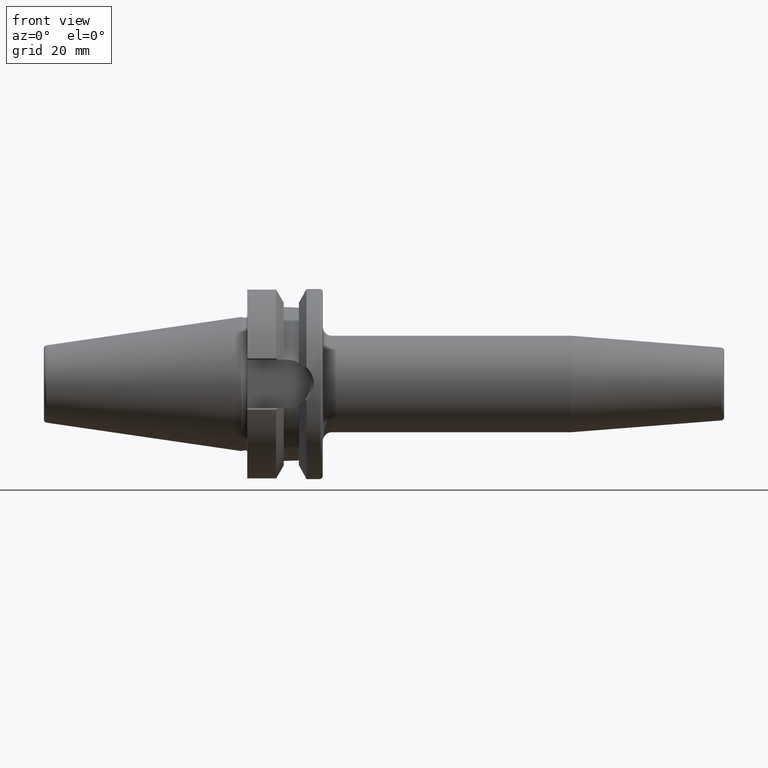
[diagram: clean part render]
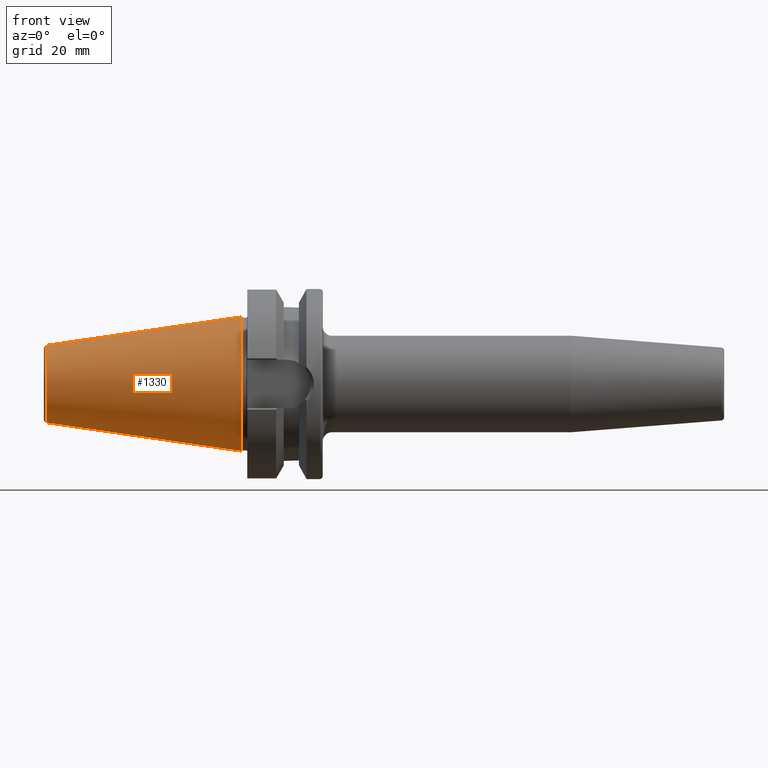
[diagram: same view with one face highlighted and labeled with its STEP entity id]
A machine part, front view. The second image highlights one B-rep face of the part: STEP entity #1330.
In plain terms, the highlighted conical surface has half-angle 8.297 deg.
Its self-contained STEP definition (entity closure, byte-faithful):
#20=CARTESIAN_POINT('',(4.547473508865E-13,0.E0,0.E0));
#21=DIRECTION('',(1.E0,0.E0,0.E0));
#22=DIRECTION('',(0.E0,0.E0,1.E0));
#23=AXIS2_PLACEMENT_3D('',#20,#21,#22);
#25=DIRECTION('',(-9.895329824990E-1,-2.390662347400E-10,1.443068832268E-1));
#26=VECTOR('',#25,6.522703944722E1);
#27=CARTESIAN_POINT('',(5.606857200746E-10,1.565092715213E-8,
-2.222499999985E1));
#28=LINE('',#27,#26);
#29=CARTESIAN_POINT('',(-6.454430688323E1,0.E0,0.E0));
#30=DIRECTION('',(-1.E0,0.E0,0.E0));
#31=DIRECTION('',(0.E0,0.E0,-1.E0));
#32=AXIS2_PLACEMENT_3D('',#29,#30,#31);
#34=DIRECTION('',(-9.895329824990E-1,2.390660335631E-10,-1.443068832268E-1));
#35=VECTOR('',#34,6.522703944722E1);
#36=CARTESIAN_POINT('',(5.606857200746E-10,-1.565091853005E-8,
2.222499999985E1));
#37=LINE('',#36,#35);
#1094=CARTESIAN_POINT('',(-6.454430688323E1,0.E0,1.281228923511E1));
#1095=CARTESIAN_POINT('',(-6.454430688323E1,0.E0,-1.281228923511E1));
#1096=VERTEX_POINT('',#1094);
#1097=VERTEX_POINT('',#1095);
#1098=CARTESIAN_POINT('',(4.547473508865E-13,0.E0,2.2225E1));
#1099=CARTESIAN_POINT('',(4.547473508865E-13,0.E0,-2.2225E1));
#1100=VERTEX_POINT('',#1098);
#1101=VERTEX_POINT('',#1099);
#1318=CARTESIAN_POINT('',(-3.227215344161E1,0.E0,0.E0));
#1319=DIRECTION('',(1.E0,0.E0,0.E0));
#1320=DIRECTION('',(0.E0,0.E0,1.E0));
#1321=AXIS2_PLACEMENT_3D('',#1318,#1319,#1320);
#1322=CONICAL_SURFACE('',#1321,1.751864461755E1,8.2971444E0);
#1323=ORIENTED_EDGE('',*,*,#1309,.T.);
#1324=ORIENTED_EDGE('',*,*,#1284,.T.);
#1326=ORIENTED_EDGE('',*,*,#1325,.T.);
#1327=ORIENTED_EDGE('',*,*,#1280,.F.);
#1328=EDGE_LOOP('',(#1323,#1324,#1326,#1327));
#1329=FACE_OUTER_BOUND('',#1328,.F.);
#1330=ADVANCED_FACE('',(#1329),#1322,.T.);
#24=CIRCLE('',#23,2.2225E1);
#33=CIRCLE('',#32,1.281228923511E1);
#1280=EDGE_CURVE('',#1100,#1096,#37,.T.);
#1284=EDGE_CURVE('',#1101,#1097,#28,.T.);
#1309=EDGE_CURVE('',#1100,#1101,#24,.T.);
#1325=EDGE_CURVE('',#1097,#1096,#33,.T.);